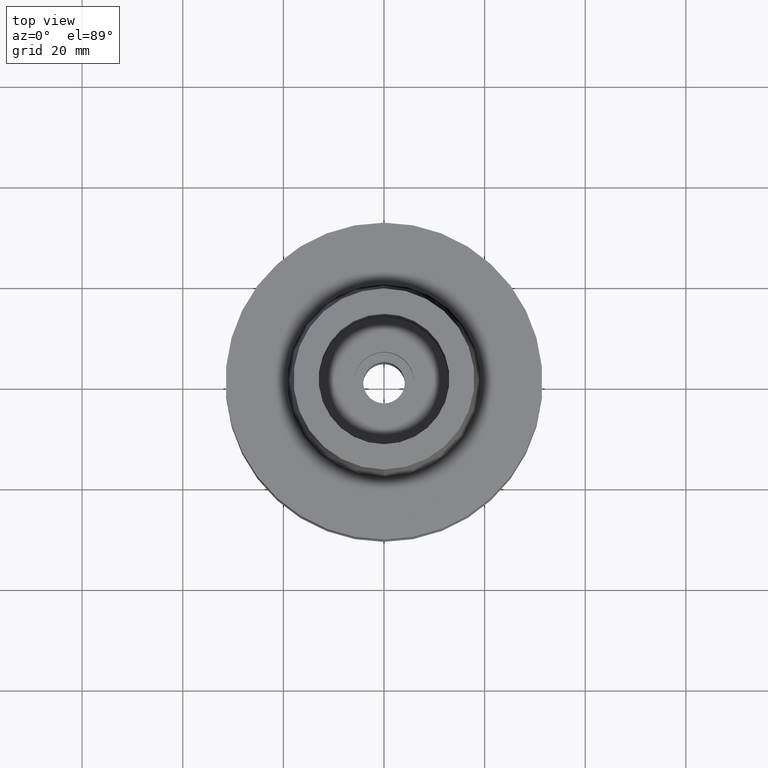
[diagram: clean part render]
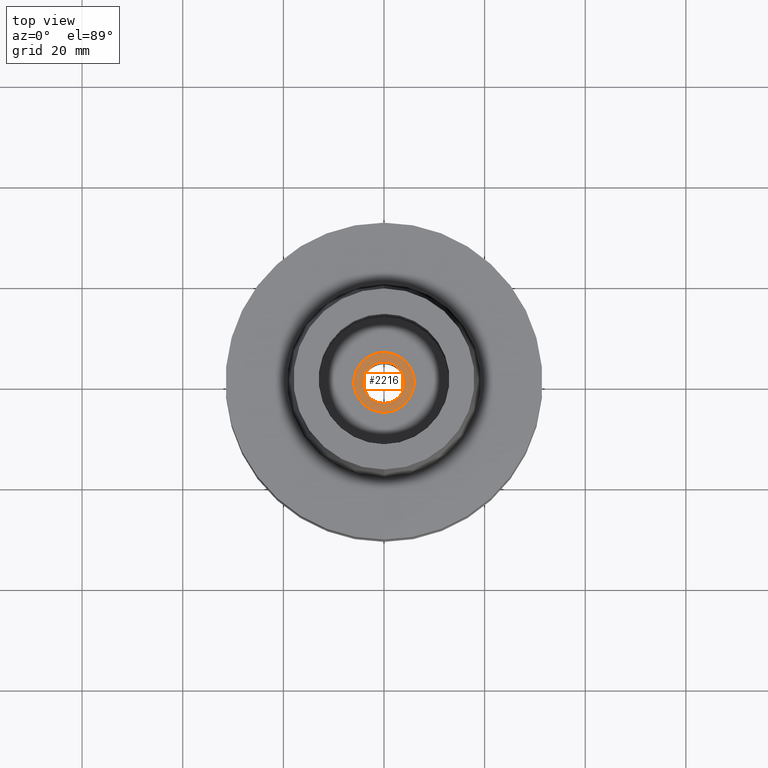
[diagram: same view with one face highlighted and labeled with its STEP entity id]
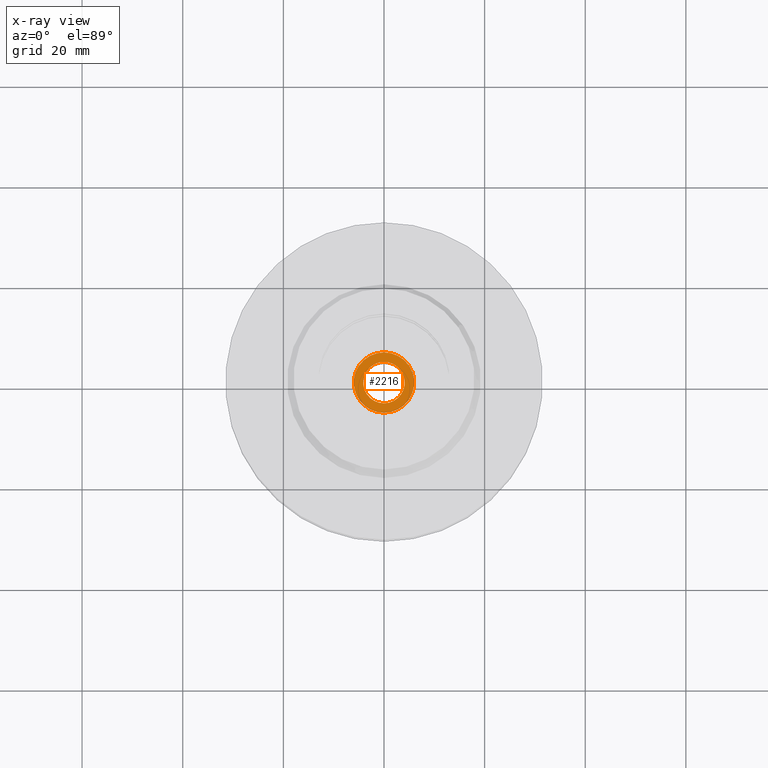
[diagram: x-ray of the same camera — body ghosted, the highlighted face saturated]
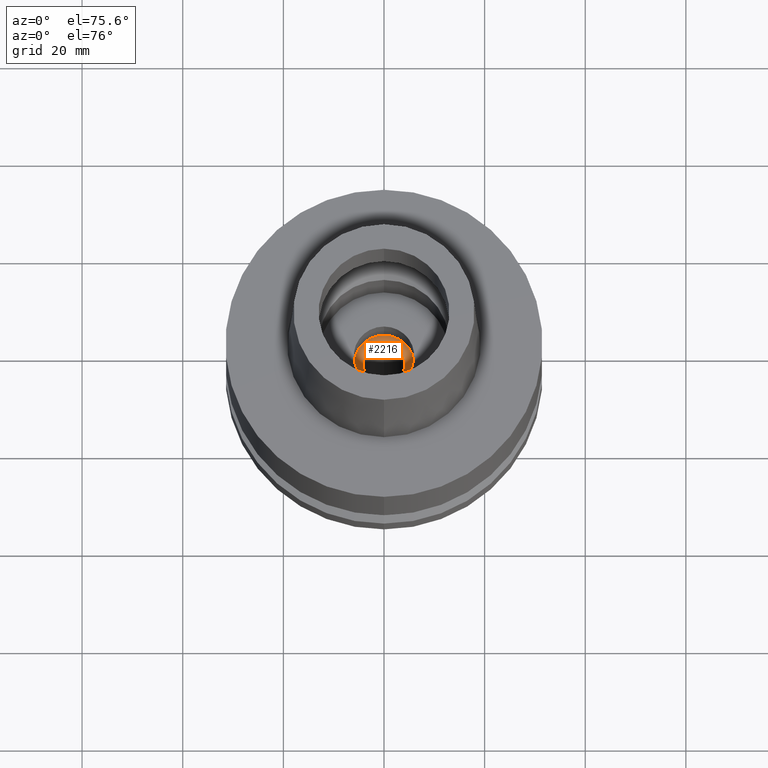
[diagram: same view with one face highlighted and labeled with its STEP entity id]
A machine part, top view. The second image highlights one B-rep face of the part: STEP entity #2216.
The next image is the same camera in x-ray: the body ghosted, the highlighted face saturated — about 0% of this face is hidden behind the body in this view.
A second angle (auxiliary view) of the same face is appended — the face is thin or edge-on in the first view.
In plain terms, the highlighted planar face has unit normal (0, 0, 1).
Its self-contained STEP definition (entity closure, byte-faithful):
#11 = DIRECTION ( 'NONE',  ( 0.0000000000000000000, 0.0000000000000000000, -1.000000000000000000 ) ) ;
#72 = DIRECTION ( 'NONE',  ( 1.000000000000000000, 0.0000000000000000000, 0.0000000000000000000 ) ) ;
#167 = VERTEX_POINT ( 'NONE', #1724 ) ;
#193 = CIRCLE ( 'NONE', #1688, 6.000000000000000000 ) ;
#244 = CARTESIAN_POINT ( 'NONE',  ( 0.0000000000000000000, 0.0000000000000000000, -16.94999999999999929 ) ) ;
#249 = CARTESIAN_POINT ( 'NONE',  ( 0.0000000000000000000, 0.0000000000000000000, -16.94999999999999929 ) ) ;
#364 = CIRCLE ( 'NONE', #1537, 4.125000000000000000 ) ;
#401 = CIRCLE ( 'NONE', #1295, 4.125000000000000000 ) ;
#449 = DIRECTION ( 'NONE',  ( 0.0000000000000000000, 0.0000000000000000000, 1.000000000000000000 ) ) ;
#466 = VERTEX_POINT ( 'NONE', #2670 ) ;
#514 = DIRECTION ( 'NONE',  ( 0.0000000000000000000, 1.000000000000000000, 0.0000000000000000000 ) ) ;
#708 = CARTESIAN_POINT ( 'NONE',  ( 0.0000000000000000000, 0.0000000000000000000, -16.94999999999999929 ) ) ;
#908 = EDGE_CURVE ( 'NONE', #1562, #167, #193, .T. ) ;
#995 = CARTESIAN_POINT ( 'NONE',  ( 0.0000000000000000000, 0.0000000000000000000, -16.94999999999999929 ) ) ;
#1094 = ORIENTED_EDGE ( 'NONE', *, *, #2645, .F. ) ;
#1192 = FACE_BOUND ( 'NONE', #2502, .T. ) ;
#1207 = CARTESIAN_POINT ( 'NONE',  ( 0.0000000000000000000, -4.125000000000000000, -16.94999999999999929 ) ) ;
#1295 = AXIS2_PLACEMENT_3D ( 'NONE', #1914, #2107, #514 ) ;
#1391 = DIRECTION ( 'NONE',  ( 0.0000000000000000000, 0.0000000000000000000, -1.000000000000000000 ) ) ;
#1396 = CIRCLE ( 'NONE', #2220, 6.000000000000000000 ) ;
#1498 = VERTEX_POINT ( 'NONE', #1207 ) ;
#1534 = ORIENTED_EDGE ( 'NONE', *, *, #2350, .F. ) ;
#1537 = AXIS2_PLACEMENT_3D ( 'NONE', #708, #449, #2227 ) ;
#1562 = VERTEX_POINT ( 'NONE', #2761 ) ;
#1688 = AXIS2_PLACEMENT_3D ( 'NONE', #244, #11, #2234 ) ;
#1724 = CARTESIAN_POINT ( 'NONE',  ( 0.0000000000000000000, 6.000000000000000000, -16.94999999999999929 ) ) ;
#1914 = CARTESIAN_POINT ( 'NONE',  ( 0.0000000000000000000, 0.0000000000000000000, -16.94999999999999929 ) ) ;
#1949 = ORIENTED_EDGE ( 'NONE', *, *, #2530, .F. ) ;
#2083 = PLANE ( 'NONE',  #2169 ) ;
#2107 = DIRECTION ( 'NONE',  ( 0.0000000000000000000, 0.0000000000000000000, 1.000000000000000000 ) ) ;
#2169 = AXIS2_PLACEMENT_3D ( 'NONE', #995, #2515, #72 ) ;
#2216 = ADVANCED_FACE ( 'NONE', ( #2757, #1192 ), #2083, .T. ) ;
#2220 = AXIS2_PLACEMENT_3D ( 'NONE', #249, #1391, #2488 ) ;
#2227 = DIRECTION ( 'NONE',  ( 0.0000000000000000000, -1.000000000000000000, 0.0000000000000000000 ) ) ;
#2234 = DIRECTION ( 'NONE',  ( 0.0000000000000000000, -1.000000000000000000, 0.0000000000000000000 ) ) ;
#2350 = EDGE_CURVE ( 'NONE', #466, #1498, #401, .T. ) ;
#2439 = ORIENTED_EDGE ( 'NONE', *, *, #908, .F. ) ;
#2488 = DIRECTION ( 'NONE',  ( 0.0000000000000000000, 1.000000000000000000, 0.0000000000000000000 ) ) ;
#2502 = EDGE_LOOP ( 'NONE', ( #1534, #1094 ) ) ;
#2515 = DIRECTION ( 'NONE',  ( 0.0000000000000000000, 0.0000000000000000000, 1.000000000000000000 ) ) ;
#2530 = EDGE_CURVE ( 'NONE', #167, #1562, #1396, .T. ) ;
#2645 = EDGE_CURVE ( 'NONE', #1498, #466, #364, .T. ) ;
#2670 = CARTESIAN_POINT ( 'NONE',  ( 0.0000000000000000000, 4.125000000000000000, -16.94999999999999929 ) ) ;
#2743 = EDGE_LOOP ( 'NONE', ( #1949, #2439 ) ) ;
#2757 = FACE_OUTER_BOUND ( 'NONE', #2743, .T. ) ;
#2761 = CARTESIAN_POINT ( 'NONE',  ( 0.0000000000000000000, -6.000000000000000000, -16.94999999999999929 ) ) ;